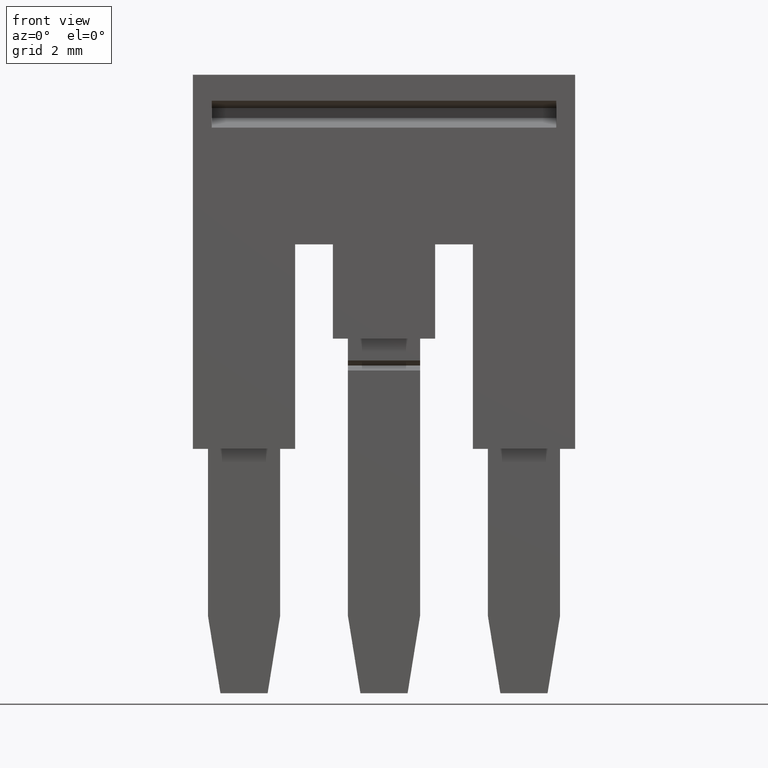
[diagram: clean part render]
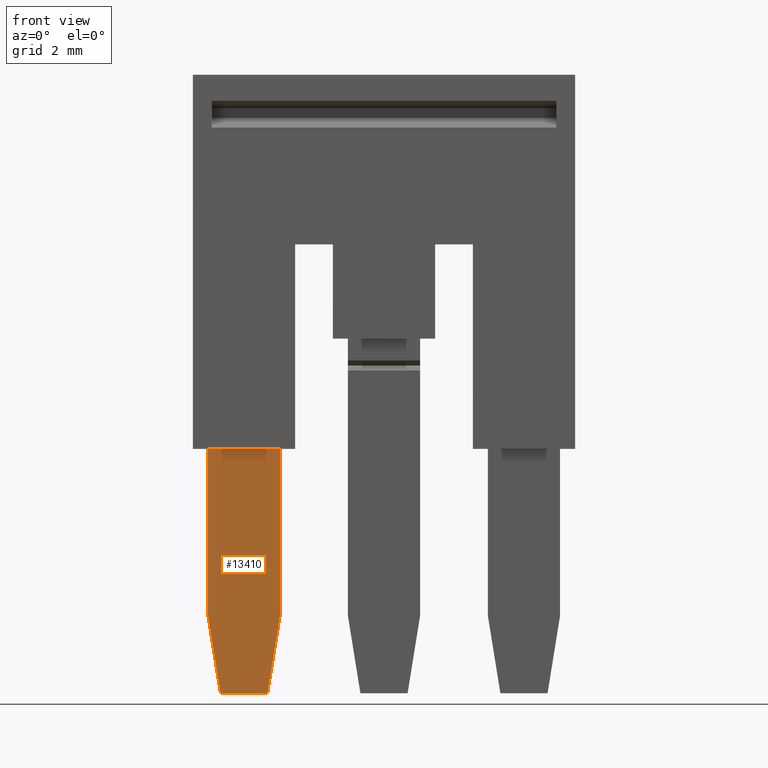
[diagram: same view with one face highlighted and labeled with its STEP entity id]
A machine part, front view. The second image highlights one B-rep face of the part: STEP entity #13410.
In plain terms, the highlighted planar face has unit normal (-0, -1, 0).
Its self-contained STEP definition (entity closure, byte-faithful):
#10970=CARTESIAN_POINT('',(4.90716722169511,-22.7749999999989,47.074984)
);
#10980=DIRECTION('',(1.22464679914735E-16,1.42292244171892E-13,-1.));
#10990=VECTOR('',#10980,1.);
#11000=LINE('',#10970,#10990);
#11010=CARTESIAN_POINT('',(4.9071672216951,-22.7750000000004,
57.8000000009616));
#11020=VERTEX_POINT('',#11010);
#11030=CARTESIAN_POINT('',(4.9071672216951,-22.7750000000001,
55.1200000009627));
#11040=VERTEX_POINT('',#11030);
#11050=EDGE_CURVE('',#11020,#11040,#11000,.T.);
#12130=CARTESIAN_POINT('',(4.9071672216951,-28.9807420624721,
57.8000000009616));
#12140=VERTEX_POINT('',#12130);
#12190=CARTESIAN_POINT('',(4.9071672216951,-12.005123999997,
57.8000000009616));
#12200=DIRECTION('',(-4.93038065763132E-32,1.,2.3789721411555E-16));
#12210=VECTOR('',#12200,1.);
#12220=LINE('',#12190,#12210);
#12230=EDGE_CURVE('',#12140,#11020,#12220,.T.);
#12440=CARTESIAN_POINT('',(4.9071672216951,-31.8500000022937,
57.3368109499658));
#12450=VERTEX_POINT('',#12440);
#12500=CARTESIAN_POINT('',(4.9071672216951,-12.005123999997,
60.5404020788988));
#12510=DIRECTION('',(-1.38777878078145E-17,0.987219178105449,
0.159368423411924));
#12520=VECTOR('',#12510,1.);
#12530=LINE('',#12500,#12520);
#12540=EDGE_CURVE('',#12450,#12140,#12530,.T.);
#12700=CARTESIAN_POINT('',(4.9071672216951,-31.8500000022934,
55.5831890519583));
#12710=VERTEX_POINT('',#12700);
#12760=CARTESIAN_POINT('',(4.90716722169511,-31.8500000022922,47.074984)
);
#12770=DIRECTION('',(1.22464679914735E-16,1.44960956186225E-13,-1.));
#12780=VECTOR('',#12770,1.);
#12790=LINE('',#12760,#12780);
#12800=EDGE_CURVE('',#12450,#12710,#12790,.T.);
#12990=CARTESIAN_POINT('',(4.9071672216951,-12.005123999997,
52.3795979230253));
#13000=DIRECTION('',(-1.38777878078145E-17,-0.987219178105449,
0.159368423411924));
#13010=VECTOR('',#13000,1.);
#13020=LINE('',#12990,#13010);
#13030=CARTESIAN_POINT('',(4.9071672216951,-28.9807420624732,
55.1200000009627));
#13040=VERTEX_POINT('',#13030);
#13050=EDGE_CURVE('',#13040,#12710,#13020,.T.);
#13230=CARTESIAN_POINT('',(4.9071672216951,-28.0020042035807,
55.4470426133458));
#13240=DIRECTION('',(1.,0.,1.22464679914735E-16));
#13250=DIRECTION('',(0.,-1.,0.));
#13260=AXIS2_PLACEMENT_3D('',#13230,#13240,#13250);
#13270=PLANE('',#13260);
#13280=ORIENTED_EDGE('',*,*,#13050,.F.);
#13290=ORIENTED_EDGE('',*,*,#12800,.T.);
#13300=ORIENTED_EDGE('',*,*,#12540,.F.);
#13310=ORIENTED_EDGE('',*,*,#12230,.F.);
#13320=ORIENTED_EDGE('',*,*,#11050,.F.);
#13330=CARTESIAN_POINT('',(4.9071672216951,-12.005123999997,
55.1200000009627));
#13340=DIRECTION('',(-1.84889274661175E-32,1.,9.11930314421364E-17));
#13350=VECTOR('',#13340,1.);
#13360=LINE('',#13330,#13350);
#13370=EDGE_CURVE('',#13040,#11040,#13360,.T.);
#13380=ORIENTED_EDGE('',*,*,#13370,.T.);
#13390=EDGE_LOOP('',(#13380,#13320,#13310,#13300,#13290,#13280));
#13400=FACE_OUTER_BOUND('',#13390,.T.);
#13410=ADVANCED_FACE('',(#13400),#13270,.T.);